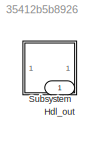
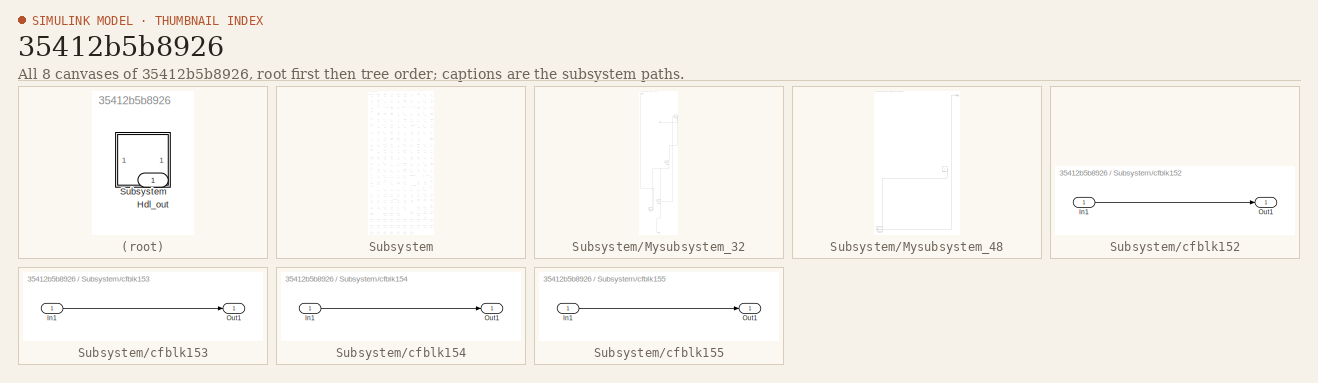
[diagram: thumbnail index - all 8 canvases of the model, root first then tree order]
MODEL slx_35412b5b8926
KIND model
CONFIG AbsTol = auto
CONFIG EnableMultiTasking = off
CONFIG FixedStep = auto
CONFIG MaxStep = auto
CONFIG MinStep = auto
CONFIG RelTol = 1e-3
CONFIG SampleTimeConstraint = Unconstrained
CONFIG SolverName = VariableStepAuto
CONFIG StartTime = 0.0
CONFIG StopTime = 10.0
BLOCK [Outport] Hdl_out
  OutDataTypeStr = uint8
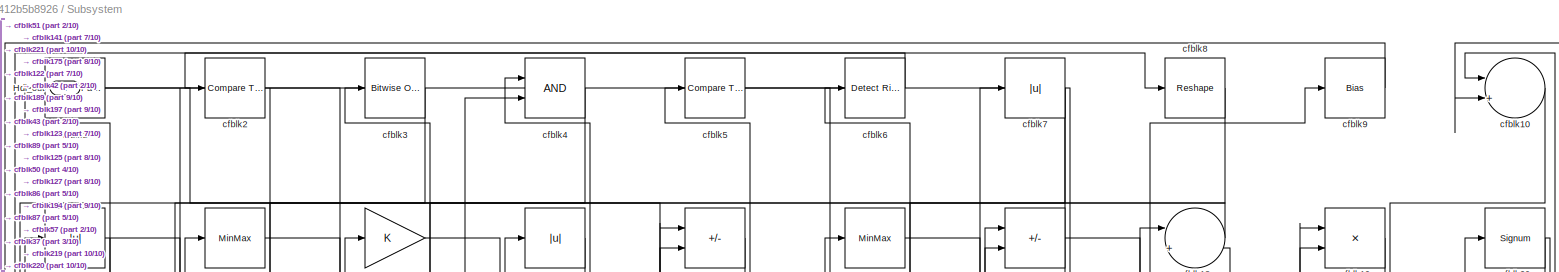
[diagram: Subsystem - part 1/10, full width, top band]
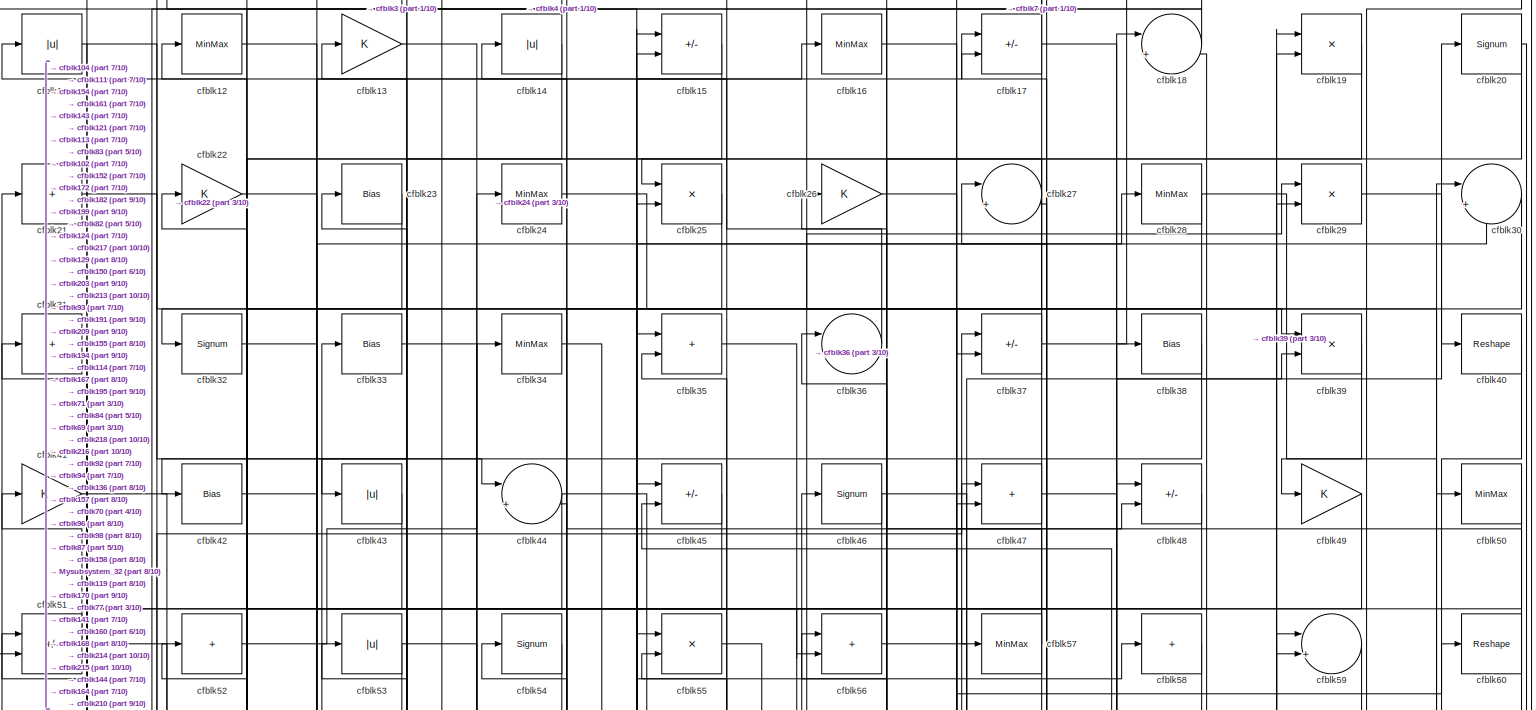
[diagram: Subsystem - part 2/10, full width, top band]
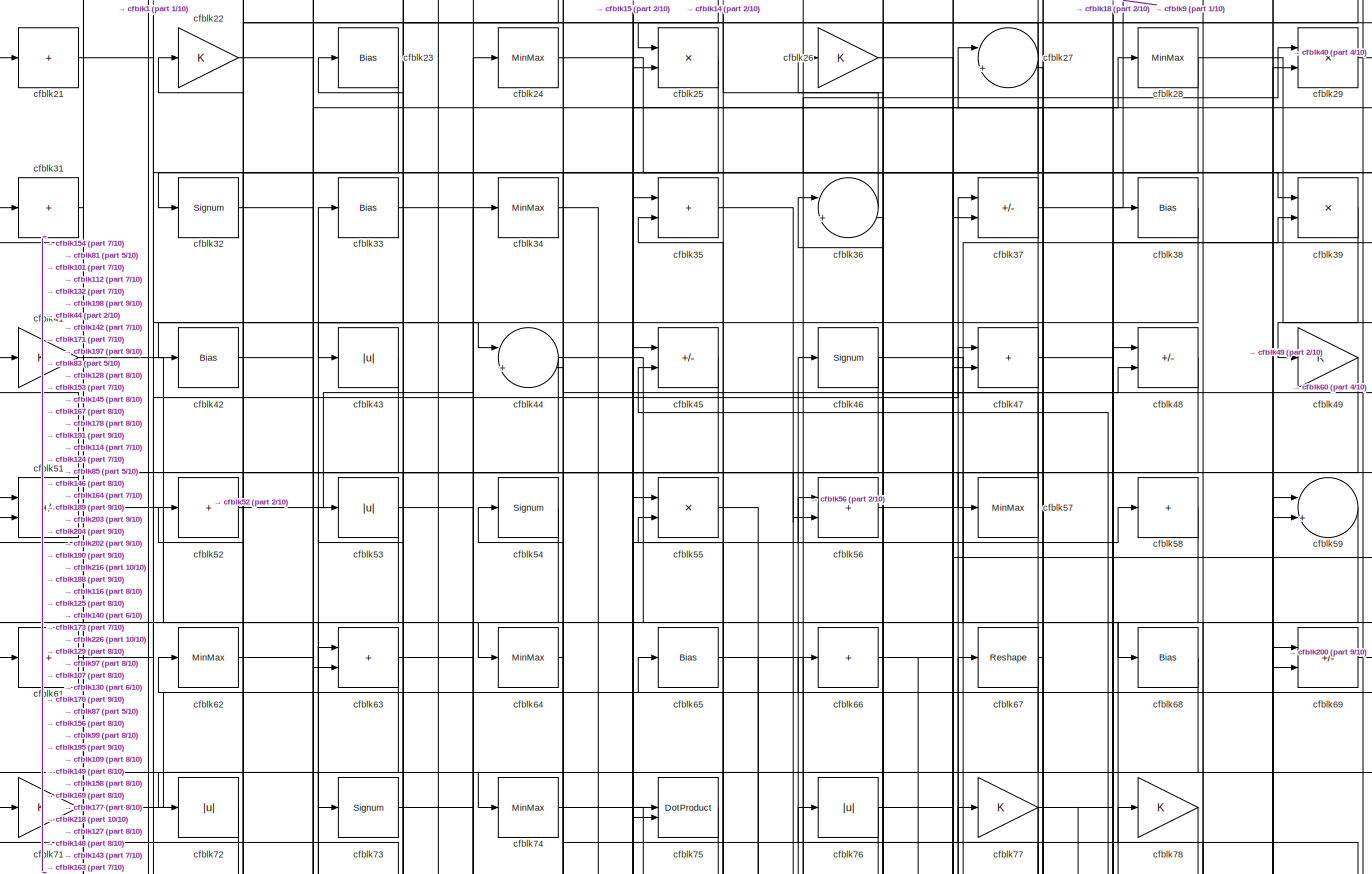
[diagram: Subsystem - part 3/10, full width, top band]
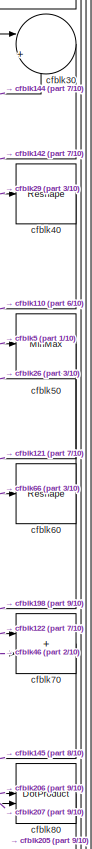
[diagram: Subsystem - part 4/10, top right region]
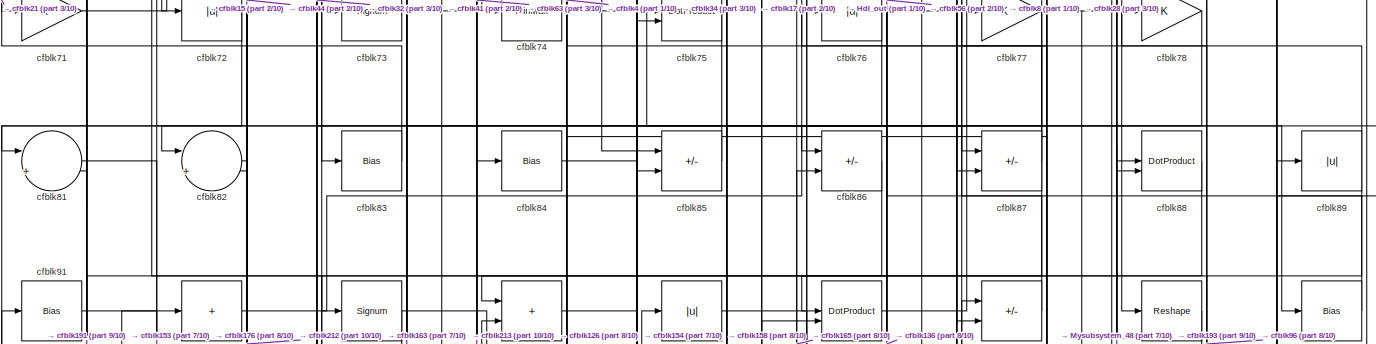
[diagram: Subsystem - part 5/10, full width, middle band]
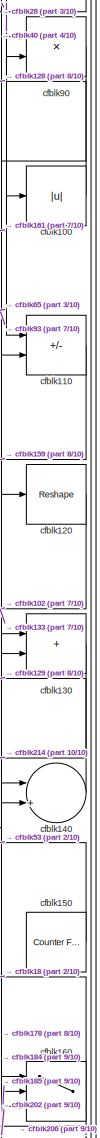
[diagram: Subsystem - part 6/10, middle right region]
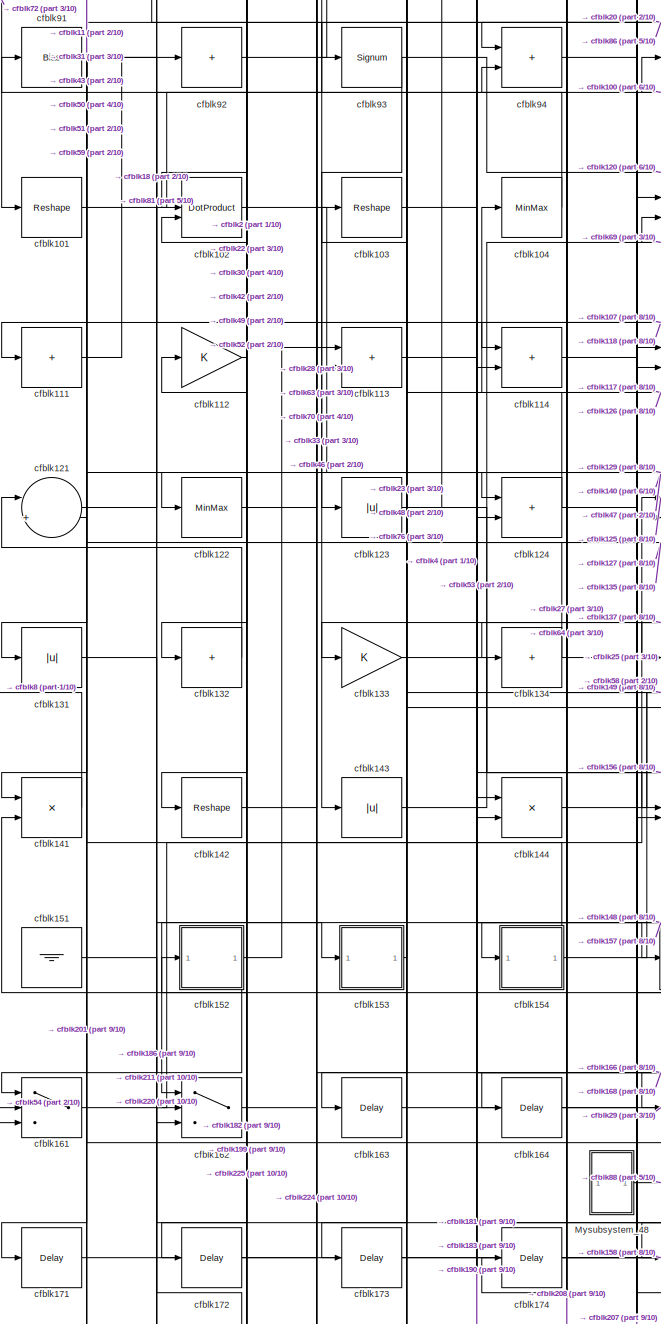
[diagram: Subsystem - part 7/10, middle left region]
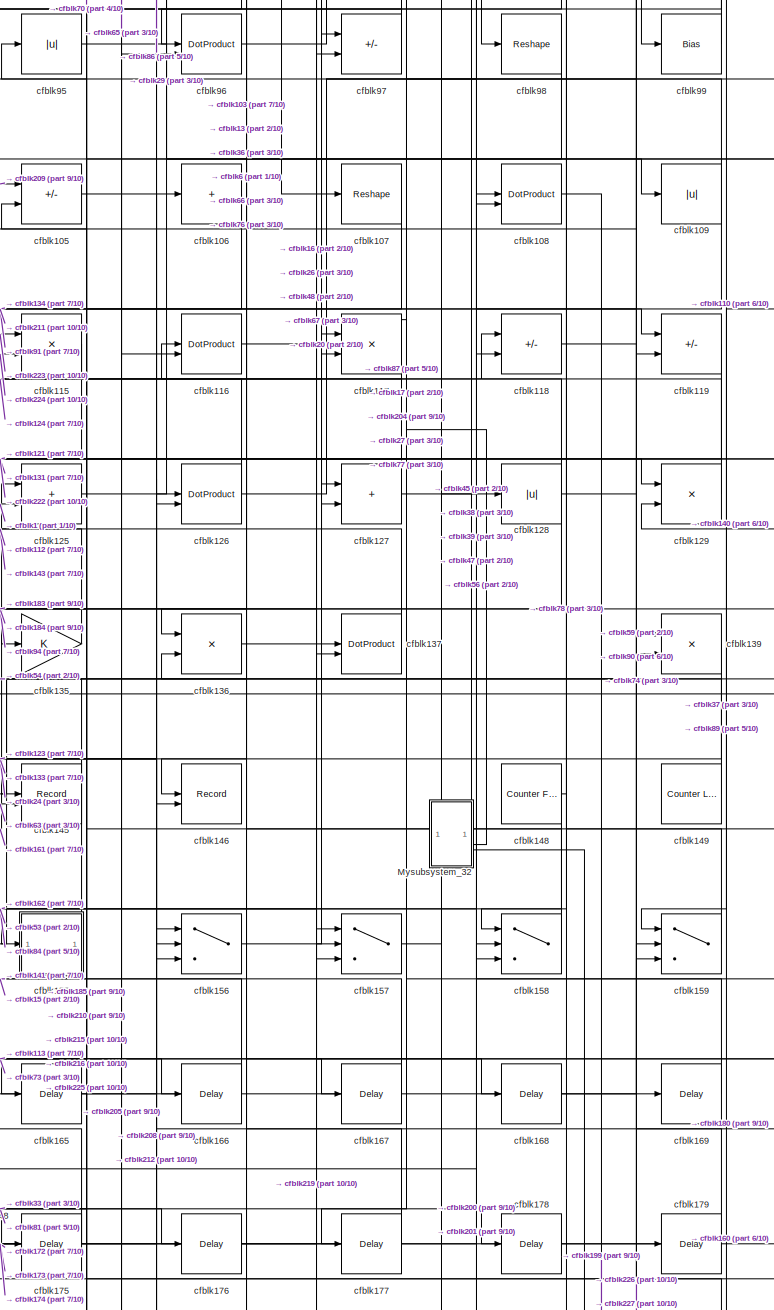
[diagram: Subsystem - part 8/10, middle right region]
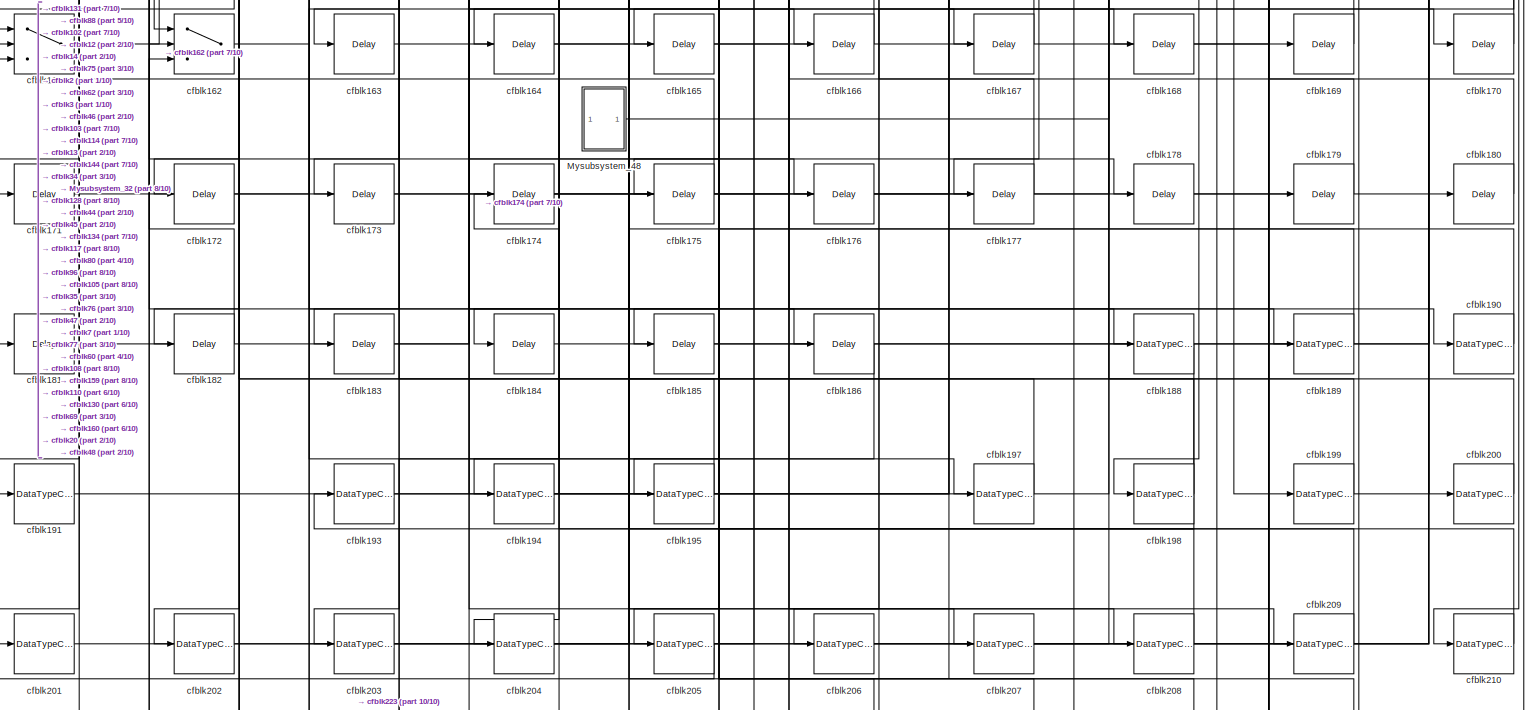
[diagram: Subsystem - part 9/10, full width, bottom band]
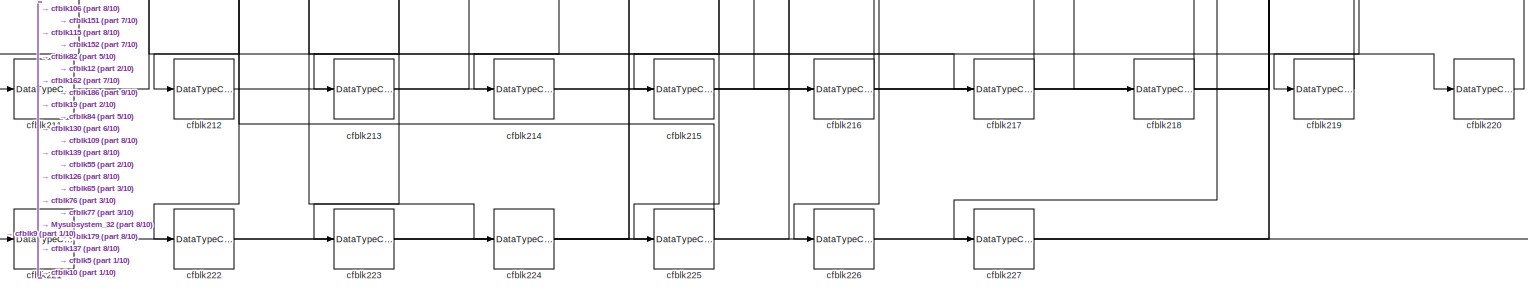
[diagram: Subsystem - part 10/10, full width, bottom band]
BLOCK [SubSystem] Subsystem
BLOCK [Outport] Subsystem/Hdl_out
  OutDataTypeStr = uint8
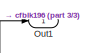
[diagram: Subsystem/Mysubsystem_32 - part 1/3, top left region]
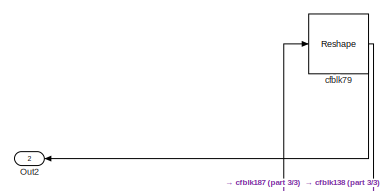
[diagram: Subsystem/Mysubsystem_32 - part 2/3, top right region]
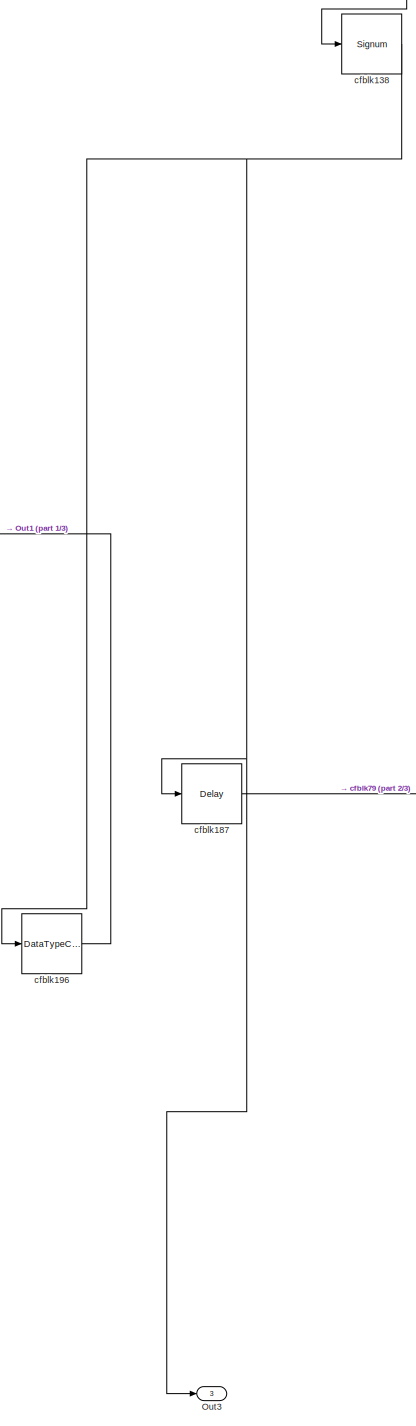
[diagram: Subsystem/Mysubsystem_32 - part 3/3, bottom center region]
BLOCK [SubSystem] Subsystem/Mysubsystem_32
  RTWFcnName = Mysubsystem_32
  RTWFcnNameOpts = User specified
  RTWFileNameOpts = Use function name
  RTWSystemCode = Reusable function
  TreatAsAtomicUnit = on
BLOCK [Outport] Subsystem/Mysubsystem_32/Out1
BLOCK [Outport] Subsystem/Mysubsystem_32/Out2
  Port = 2
BLOCK [Outport] Subsystem/Mysubsystem_32/Out3
  Port = 3
BLOCK [Signum] Subsystem/Mysubsystem_32/cfblk138
BLOCK [Delay] Subsystem/Mysubsystem_32/cfblk187
  InputPortMap = u0
  SampleTime = 1
BLOCK [DataTypeConversion] Subsystem/Mysubsystem_32/cfblk196
  OutDataTypeStr = uint8
  RndMeth = Floor
  SaturateOnIntegerOverflow = off
BLOCK [Reshape] Subsystem/Mysubsystem_32/cfblk79
BLOCK [SubSystem] Subsystem/Mysubsystem_48
  RTWFcnName = Mysubsystem_48
  RTWFcnNameOpts = User specified
  RTWFileNameOpts = Use function name
  RTWSystemCode = Reusable function
  TreatAsAtomicUnit = on
BLOCK [Outport] Subsystem/Mysubsystem_48/Out1
BLOCK [Constant] Subsystem/Mysubsystem_48/cfblk147
  SampleTime = -1
BLOCK [DataTypeConversion] Subsystem/Mysubsystem_48/cfblk192
  OutDataTypeStr = uint8
  RndMeth = Floor
  SaturateOnIntegerOverflow = off
BLOCK [Reference] Subsystem/cfblk1  REF=hdlsllib/Logic and Bit
Operations/Detect Fall
Nonpositive
  SourceBlock = hdlsllib/Logic and Bit\nOperations/Detect Fall\nNonpositive
  SourceType = Detect Fall Nonpositive
BLOCK [Sum] Subsystem/cfblk10
  Inputs = |++
  OutDataTypeStr = uint8
BLOCK [Abs] Subsystem/cfblk100
  OutDataTypeStr = uint8
  SaturateOnIntegerOverflow = off
BLOCK [Reshape] Subsystem/cfblk101
BLOCK [DotProduct] Subsystem/cfblk102
  OutDataTypeStr = uint8
BLOCK [Reshape] Subsystem/cfblk103
BLOCK [MinMax] Subsystem/cfblk104
  OutDataTypeStr = uint8
BLOCK [Sum] Subsystem/cfblk105
  IconShape = rectangular
  Inputs = +-
  OutDataTypeStr = uint8
BLOCK [Sum] Subsystem/cfblk106
  IconShape = rectangular
  Inputs = +
  OutDataTypeStr = uint8
BLOCK [Reshape] Subsystem/cfblk107
BLOCK [DotProduct] Subsystem/cfblk108
  OutDataTypeStr = uint8
BLOCK [Abs] Subsystem/cfblk109
  OutDataTypeStr = uint8
  SaturateOnIntegerOverflow = off
BLOCK [Abs] Subsystem/cfblk11
  OutDataTypeStr = uint8
  SaturateOnIntegerOverflow = off
BLOCK [Sum] Subsystem/cfblk110
  IconShape = rectangular
  Inputs = +-
  OutDataTypeStr = uint8
BLOCK [Sum] Subsystem/cfblk111
  IconShape = rectangular
  Inputs = +
  OutDataTypeStr = uint8
BLOCK [Gain] Subsystem/cfblk112
  OutDataTypeStr = uint8
BLOCK [Sum] Subsystem/cfblk113
  IconShape = rectangular
  OutDataTypeStr = uint8
BLOCK [Sum] Subsystem/cfblk114
  IconShape = rectangular
  OutDataTypeStr = uint8
BLOCK [Product] Subsystem/cfblk115
  Inputs = */
  OutDataTypeStr = uint8
  RndMeth = Zero
  SaturateOnIntegerOverflow = on
BLOCK [DotProduct] Subsystem/cfblk116
  OutDataTypeStr = uint8
BLOCK [Product] Subsystem/cfblk117
  Inputs = */
  OutDataTypeStr = uint8
  RndMeth = Zero
  SaturateOnIntegerOverflow = on
BLOCK [Sum] Subsystem/cfblk118
  IconShape = rectangular
  Inputs = +-
  OutDataTypeStr = uint8
BLOCK [Sum] Subsystem/cfblk119
  IconShape = rectangular
  Inputs = +-
  OutDataTypeStr = uint8
BLOCK [MinMax] Subsystem/cfblk12
  OutDataTypeStr = uint8
BLOCK [Reshape] Subsystem/cfblk120
BLOCK [Sum] Subsystem/cfblk121
  Inputs = |++
  OutDataTypeStr = uint8
BLOCK [MinMax] Subsystem/cfblk122
  OutDataTypeStr = uint8
BLOCK [Abs] Subsystem/cfblk123
  OutDataTypeStr = uint8
  SaturateOnIntegerOverflow = off
BLOCK [Sum] Subsystem/cfblk124
  IconShape = rectangular
  OutDataTypeStr = uint8
BLOCK [Sum] Subsystem/cfblk125
  IconShape = rectangular
  OutDataTypeStr = uint8
BLOCK [DotProduct] Subsystem/cfblk126
  OutDataTypeStr = uint8
BLOCK [Sum] Subsystem/cfblk127
  IconShape = rectangular
  OutDataTypeStr = uint8
BLOCK [Abs] Subsystem/cfblk128
  OutDataTypeStr = uint8
  SaturateOnIntegerOverflow = off
BLOCK [Product] Subsystem/cfblk129
  Inputs = */
  OutDataTypeStr = uint8
  RndMeth = Zero
  SaturateOnIntegerOverflow = on
BLOCK [Gain] Subsystem/cfblk13
  OutDataTypeStr = uint8
BLOCK [Sum] Subsystem/cfblk130
  IconShape = rectangular
  OutDataTypeStr = uint8
BLOCK [Abs] Subsystem/cfblk131
  OutDataTypeStr = uint8
  SaturateOnIntegerOverflow = off
BLOCK [Sum] Subsystem/cfblk132
  IconShape = rectangular
  Inputs = +
  OutDataTypeStr = uint8
BLOCK [Gain] Subsystem/cfblk133
  OutDataTypeStr = uint8
BLOCK [Sum] Subsystem/cfblk134
  IconShape = rectangular
  Inputs = +
  OutDataTypeStr = uint8
BLOCK [Gain] Subsystem/cfblk135
  OutDataTypeStr = uint8
BLOCK [Product] Subsystem/cfblk136
  Inputs = */
  OutDataTypeStr = uint8
  RndMeth = Zero
  SaturateOnIntegerOverflow = on
BLOCK [DotProduct] Subsystem/cfblk137
  OutDataTypeStr = uint8
BLOCK [Product] Subsystem/cfblk139
  Inputs = */
  OutDataTypeStr = uint8
  RndMeth = Zero
  SaturateOnIntegerOverflow = on
BLOCK [Abs] Subsystem/cfblk14
  OutDataTypeStr = uint8
  SaturateOnIntegerOverflow = off
BLOCK [Sum] Subsystem/cfblk140
  Inputs = |++
  OutDataTypeStr = uint8
BLOCK [Product] Subsystem/cfblk141
  Inputs = */
  OutDataTypeStr = uint8
  RndMeth = Zero
  SaturateOnIntegerOverflow = on
BLOCK [Reshape] Subsystem/cfblk142
BLOCK [Abs] Subsystem/cfblk143
  OutDataTypeStr = uint8
  SaturateOnIntegerOverflow = off
BLOCK [Product] Subsystem/cfblk144
  Inputs = */
  OutDataTypeStr = uint8
  RndMeth = Zero
  SaturateOnIntegerOverflow = on
BLOCK [Record] Subsystem/cfblk145
  CompatibilityTag = XY
  FileSettingsInternal = {"entries":[{"content":{"excelSettings":{"content":{},"type":"Streamout.ExcelSettings"}},"type":"Streamout.FileSettingStorage","uuid":""}],"packageUris":["http:\/\/schema.mathworks.com\/mf0\/streamout_blocks\/R2020a"],"version":"1.0"}
  Layout = [1 1]
  SignalsInternal = {"entries":[{"content":{"signals":[{"content":{"blockPath":[],"dimensions":[1],"domain":"","lineColor":"#a2142f","plots":[1],"port":1,"signalID":32160,"signalName":"cfblk70"},"type":"RecordBlkView.Signal","uuid":""},{"content":{"blockPath":[],"dimensions":[1],"domain":"","lineColor":"#139fff","plots":[1],"port":2,"signalID":32163,"signalName":"cfblk63"},"type":"RecordBlkView.Signal","uuid":""}]},"...<+142ch>
  VisualizationBindings = {"xyplotplugin":{"info":[{"series":[{"bindingParametersList":[{"parameter":"X-Axis","signalID":32160,"signalName":"cfblk70"},{"parameter":"Y-Axis","signalID":32163,"signalName":"cfblk63"}],"seriesID":42560}],"subplotID":1}]}}
  st = -1
BLOCK [Record] Subsystem/cfblk146
  CompatibilityTag = XY
  FileSettingsInternal = {"entries":[{"content":{"excelSettings":{"content":{},"type":"Streamout.ExcelSettings"}},"type":"Streamout.FileSettingStorage","uuid":""}],"packageUris":["http:\/\/schema.mathworks.com\/mf0\/streamout_blocks\/R2020a"],"version":"1.0"}
  Layout = [1 1]
  SignalsInternal = {"entries":[{"content":{"signals":[{"content":{"blockPath":[],"dimensions":[1],"domain":"","lineColor":"#a2142f","plots":[1],"port":1,"signalID":32152,"signalName":"cfblk78"},"type":"RecordBlkView.Signal","uuid":""},{"content":{"blockPath":[],"dimensions":[1],"domain":"","lineColor":"#139fff","plots":[1],"port":2,"signalID":32155,"signalName":"cfblk24"},"type":"RecordBlkView.Signal","uuid":""}]},"...<+142ch>
  VisualizationBindings = {"xyplotplugin":{"info":[{"series":[{"bindingParametersList":[{"parameter":"X-Axis","signalID":32152,"signalName":"cfblk78"},{"parameter":"Y-Axis","signalID":32155,"signalName":"cfblk24"}],"seriesID":30195}],"subplotID":1}]}}
  st = -1
BLOCK [Reference] Subsystem/cfblk148  REF=hdlsllib/Sources/Counter
Free-Running
  SourceBlock = hdlsllib/Sources/Counter\nFree-Running
  SourceType = Counter Free-Running
BLOCK [Reference] Subsystem/cfblk149  REF=hdlsllib/Sources/Counter
Limited
  SourceBlock = hdlsllib/Sources/Counter\nLimited
  SourceType = Counter Limited
BLOCK [Sum] Subsystem/cfblk15
  IconShape = rectangular
  Inputs = +-
  OutDataTypeStr = uint8
BLOCK [Reference] Subsystem/cfblk150  REF=hdlsllib/Sources/Counter
Free-Running
  SourceBlock = hdlsllib/Sources/Counter\nFree-Running
  SourceType = Counter Free-Running
BLOCK [Ground] Subsystem/cfblk151
BLOCK [SubSystem] Subsystem/cfblk152
  LibrarySourceBlock = hdlsllib/Ports &\nSubsystems/Subsystem
BLOCK [Inport] Subsystem/cfblk152/In1
BLOCK [Outport] Subsystem/cfblk152/Out1
BLOCK [SubSystem] Subsystem/cfblk153
  LibrarySourceBlock = hdlsllib/Ports &\nSubsystems/Subsystem
BLOCK [Inport] Subsystem/cfblk153/In1
BLOCK [Outport] Subsystem/cfblk153/Out1
BLOCK [SubSystem] Subsystem/cfblk154
  LibrarySourceBlock = hdlsllib/Ports &\nSubsystems/Subsystem
BLOCK [Inport] Subsystem/cfblk154/In1
BLOCK [Outport] Subsystem/cfblk154/Out1
BLOCK [SubSystem] Subsystem/cfblk155
  LibrarySourceBlock = hdlsllib/Ports &\nSubsystems/Subsystem
BLOCK [Inport] Subsystem/cfblk155/In1
BLOCK [Outport] Subsystem/cfblk155/Out1
BLOCK [Switch] Subsystem/cfblk156
  InputSameDT = off
  OutDataTypeStr = uint8
  SaturateOnIntegerOverflow = off
BLOCK [Switch] Subsystem/cfblk157
  InputSameDT = off
  OutDataTypeStr = uint8
  SaturateOnIntegerOverflow = off
BLOCK [Switch] Subsystem/cfblk158
  InputSameDT = off
  OutDataTypeStr = uint8
  SaturateOnIntegerOverflow = off
BLOCK [Switch] Subsystem/cfblk159
  InputSameDT = off
  OutDataTypeStr = uint8
  SaturateOnIntegerOverflow = off
BLOCK [MinMax] Subsystem/cfblk16
  OutDataTypeStr = uint8
BLOCK [Switch] Subsystem/cfblk160
  InputSameDT = off
  OutDataTypeStr = uint8
  SaturateOnIntegerOverflow = off
BLOCK [Switch] Subsystem/cfblk161
  InputSameDT = off
  OutDataTypeStr = uint8
  SaturateOnIntegerOverflow = off
BLOCK [Switch] Subsystem/cfblk162
  InputSameDT = off
  OutDataTypeStr = uint8
  SaturateOnIntegerOverflow = off
BLOCK [Delay] Subsystem/cfblk163
  InputPortMap = u0
  SampleTime = 1
BLOCK [Delay] Subsystem/cfblk164
  InputPortMap = u0
  SampleTime = 1
BLOCK [Delay] Subsystem/cfblk165
  InputPortMap = u0
  SampleTime = 1
BLOCK [Delay] Subsystem/cfblk166
  InputPortMap = u0
  SampleTime = 1
BLOCK [Delay] Subsystem/cfblk167
  InputPortMap = u0
  SampleTime = 1
BLOCK [Delay] Subsystem/cfblk168
  InputPortMap = u0
  SampleTime = 1
BLOCK [Delay] Subsystem/cfblk169
  InputPortMap = u0
  SampleTime = 1
BLOCK [Sum] Subsystem/cfblk17
  IconShape = rectangular
  Inputs = +-
  OutDataTypeStr = uint8
BLOCK [Delay] Subsystem/cfblk170
  InputPortMap = u0
  SampleTime = 1
BLOCK [Delay] Subsystem/cfblk171
  InputPortMap = u0
  SampleTime = 1
BLOCK [Delay] Subsystem/cfblk172
  InputPortMap = u0
  SampleTime = 1
BLOCK [Delay] Subsystem/cfblk173
  InputPortMap = u0
  SampleTime = 1
BLOCK [Delay] Subsystem/cfblk174
  InputPortMap = u0
  SampleTime = 1
BLOCK [Delay] Subsystem/cfblk175
  InputPortMap = u0
  SampleTime = 1
BLOCK [Delay] Subsystem/cfblk176
  InputPortMap = u0
  SampleTime = 1
BLOCK [Delay] Subsystem/cfblk177
  InputPortMap = u0
  SampleTime = 1
BLOCK [Delay] Subsystem/cfblk178
  InputPortMap = u0
  SampleTime = 1
BLOCK [Delay] Subsystem/cfblk179
  InputPortMap = u0
  SampleTime = 1
BLOCK [Sum] Subsystem/cfblk18
  Inputs = |++
  OutDataTypeStr = uint8
BLOCK [Delay] Subsystem/cfblk180
  InputPortMap = u0
  SampleTime = 1
BLOCK [Delay] Subsystem/cfblk181
  InputPortMap = u0
  SampleTime = 1
BLOCK [Delay] Subsystem/cfblk182
  InputPortMap = u0
  SampleTime = 1
BLOCK [Delay] Subsystem/cfblk183
  InputPortMap = u0
  SampleTime = 1
BLOCK [Delay] Subsystem/cfblk184
  InputPortMap = u0
  SampleTime = 1
BLOCK [Delay] Subsystem/cfblk185
  InputPortMap = u0
  SampleTime = 1
BLOCK [Delay] Subsystem/cfblk186
  InputPortMap = u0
  SampleTime = 1
BLOCK [DataTypeConversion] Subsystem/cfblk188
  OutDataTypeStr = uint8
  RndMeth = Floor
  SaturateOnIntegerOverflow = off
BLOCK [DataTypeConversion] Subsystem/cfblk189
  OutDataTypeStr = uint8
  RndMeth = Floor
  SaturateOnIntegerOverflow = off
BLOCK [Product] Subsystem/cfblk19
  Inputs = */
  OutDataTypeStr = uint8
  RndMeth = Zero
  SaturateOnIntegerOverflow = on
BLOCK [DataTypeConversion] Subsystem/cfblk190
  OutDataTypeStr = uint8
  RndMeth = Floor
  SaturateOnIntegerOverflow = off
BLOCK [DataTypeConversion] Subsystem/cfblk191
  OutDataTypeStr = uint8
  RndMeth = Floor
  SaturateOnIntegerOverflow = off
BLOCK [DataTypeConversion] Subsystem/cfblk193
  OutDataTypeStr = uint8
  RndMeth = Floor
  SaturateOnIntegerOverflow = off
BLOCK [DataTypeConversion] Subsystem/cfblk194
  OutDataTypeStr = uint8
  RndMeth = Floor
  SaturateOnIntegerOverflow = off
BLOCK [DataTypeConversion] Subsystem/cfblk195
  OutDataTypeStr = uint8
  RndMeth = Floor
  SaturateOnIntegerOverflow = off
BLOCK [DataTypeConversion] Subsystem/cfblk197
  OutDataTypeStr = uint8
  RndMeth = Floor
  SaturateOnIntegerOverflow = off
BLOCK [DataTypeConversion] Subsystem/cfblk198
  OutDataTypeStr = uint8
  RndMeth = Floor
  SaturateOnIntegerOverflow = off
BLOCK [DataTypeConversion] Subsystem/cfblk199
  OutDataTypeStr = uint8
  RndMeth = Floor
  SaturateOnIntegerOverflow = off
BLOCK [Reference] Subsystem/cfblk2  REF=hdlsllib/Logic and Bit
Operations/Compare
To Constant
  SourceBlock = hdlsllib/Logic and Bit\nOperations/Compare\nTo Constant
  SourceType = Compare To Constant
BLOCK [Signum] Subsystem/cfblk20
BLOCK [DataTypeConversion] Subsystem/cfblk200
  OutDataTypeStr = uint8
  RndMeth = Floor
  SaturateOnIntegerOverflow = off
BLOCK [DataTypeConversion] Subsystem/cfblk201
  OutDataTypeStr = uint8
  RndMeth = Floor
  SaturateOnIntegerOverflow = off
BLOCK [DataTypeConversion] Subsystem/cfblk202
  OutDataTypeStr = uint8
  RndMeth = Floor
  SaturateOnIntegerOverflow = off
BLOCK [DataTypeConversion] Subsystem/cfblk203
  OutDataTypeStr = uint8
  RndMeth = Floor
  SaturateOnIntegerOverflow = off
BLOCK [DataTypeConversion] Subsystem/cfblk204
  OutDataTypeStr = uint8
  RndMeth = Floor
  SaturateOnIntegerOverflow = off
BLOCK [DataTypeConversion] Subsystem/cfblk205
  OutDataTypeStr = uint8
  RndMeth = Floor
  SaturateOnIntegerOverflow = off
BLOCK [DataTypeConversion] Subsystem/cfblk206
  OutDataTypeStr = uint8
  RndMeth = Floor
  SaturateOnIntegerOverflow = off
BLOCK [DataTypeConversion] Subsystem/cfblk207
  OutDataTypeStr = uint8
  RndMeth = Floor
  SaturateOnIntegerOverflow = off
BLOCK [DataTypeConversion] Subsystem/cfblk208
  OutDataTypeStr = uint8
  RndMeth = Floor
  SaturateOnIntegerOverflow = off
BLOCK [DataTypeConversion] Subsystem/cfblk209
  OutDataTypeStr = uint8
  RndMeth = Floor
  SaturateOnIntegerOverflow = off
BLOCK [Sum] Subsystem/cfblk21
  IconShape = rectangular
  Inputs = +
  OutDataTypeStr = uint8
BLOCK [DataTypeConversion] Subsystem/cfblk210
  OutDataTypeStr = uint8
  RndMeth = Floor
  SaturateOnIntegerOverflow = off
BLOCK [DataTypeConversion] Subsystem/cfblk211
  OutDataTypeStr = uint8
  RndMeth = Floor
  SaturateOnIntegerOverflow = off
BLOCK [DataTypeConversion] Subsystem/cfblk212
  OutDataTypeStr = uint8
  RndMeth = Floor
  SaturateOnIntegerOverflow = off
BLOCK [DataTypeConversion] Subsystem/cfblk213
  OutDataTypeStr = uint8
  RndMeth = Floor
  SaturateOnIntegerOverflow = off
BLOCK [DataTypeConversion] Subsystem/cfblk214
  OutDataTypeStr = uint8
  RndMeth = Floor
  SaturateOnIntegerOverflow = off
BLOCK [DataTypeConversion] Subsystem/cfblk215
  OutDataTypeStr = uint8
  RndMeth = Floor
  SaturateOnIntegerOverflow = off
BLOCK [DataTypeConversion] Subsystem/cfblk216
  OutDataTypeStr = uint8
  RndMeth = Floor
  SaturateOnIntegerOverflow = off
BLOCK [DataTypeConversion] Subsystem/cfblk217
  OutDataTypeStr = uint8
  RndMeth = Floor
  SaturateOnIntegerOverflow = off
BLOCK [DataTypeConversion] Subsystem/cfblk218
  OutDataTypeStr = uint8
  RndMeth = Floor
  SaturateOnIntegerOverflow = off
BLOCK [DataTypeConversion] Subsystem/cfblk219
  OutDataTypeStr = uint8
  RndMeth = Floor
  SaturateOnIntegerOverflow = off
BLOCK [Gain] Subsystem/cfblk22
  OutDataTypeStr = uint8
BLOCK [DataTypeConversion] Subsystem/cfblk220
  OutDataTypeStr = uint8
  RndMeth = Floor
  SaturateOnIntegerOverflow = off
BLOCK [DataTypeConversion] Subsystem/cfblk221
  OutDataTypeStr = uint8
  RndMeth = Floor
  SaturateOnIntegerOverflow = off
BLOCK [DataTypeConversion] Subsystem/cfblk222
  OutDataTypeStr = uint8
  RndMeth = Floor
  SaturateOnIntegerOverflow = off
BLOCK [DataTypeConversion] Subsystem/cfblk223
  OutDataTypeStr = uint8
  RndMeth = Floor
  SaturateOnIntegerOverflow = off
BLOCK [DataTypeConversion] Subsystem/cfblk224
  OutDataTypeStr = uint8
  RndMeth = Floor
  SaturateOnIntegerOverflow = off
BLOCK [DataTypeConversion] Subsystem/cfblk225
  OutDataTypeStr = uint8
  RndMeth = Floor
  SaturateOnIntegerOverflow = off
BLOCK [DataTypeConversion] Subsystem/cfblk226
  OutDataTypeStr = uint8
  RndMeth = Floor
  SaturateOnIntegerOverflow = off
BLOCK [DataTypeConversion] Subsystem/cfblk227
  OutDataTypeStr = uint8
  RndMeth = Floor
  SaturateOnIntegerOverflow = off
BLOCK [Bias] Subsystem/cfblk23
  Bias = 0.0
  SaturateOnIntegerOverflow = off
BLOCK [MinMax] Subsystem/cfblk24
  OutDataTypeStr = uint8
BLOCK [Product] Subsystem/cfblk25
  Inputs = */
  OutDataTypeStr = uint8
  RndMeth = Zero
  SaturateOnIntegerOverflow = on
BLOCK [Gain] Subsystem/cfblk26
  OutDataTypeStr = uint8
BLOCK [Sum] Subsystem/cfblk27
  Inputs = |++
  OutDataTypeStr = uint8
BLOCK [MinMax] Subsystem/cfblk28
  OutDataTypeStr = uint8
BLOCK [Product] Subsystem/cfblk29
  Inputs = */
  OutDataTypeStr = uint8
  RndMeth = Zero
  SaturateOnIntegerOverflow = on
BLOCK [Reference] Subsystem/cfblk3  REF=simulink/Logic and Bit
Operations/Bitwise
Operator
  LibrarySourceBlock = hdlsllib/Logic and Bit\nOperations/Bitwise\nOperator
  SourceBlock = simulink/Logic and Bit\nOperations/Bitwise\nOperator
  SourceType = Bitwise Operator
BLOCK [Sum] Subsystem/cfblk30
  Inputs = |++
  OutDataTypeStr = uint8
BLOCK [Sum] Subsystem/cfblk31
  IconShape = rectangular
  Inputs = +
  OutDataTypeStr = uint8
BLOCK [Signum] Subsystem/cfblk32
BLOCK [Bias] Subsystem/cfblk33
  Bias = 0.0
  SaturateOnIntegerOverflow = off
BLOCK [MinMax] Subsystem/cfblk34
  OutDataTypeStr = uint8
BLOCK [Sum] Subsystem/cfblk35
  IconShape = rectangular
  OutDataTypeStr = uint8
BLOCK [Sum] Subsystem/cfblk36
  Inputs = |++
  OutDataTypeStr = uint8
BLOCK [Sum] Subsystem/cfblk37
  IconShape = rectangular
  Inputs = +-
  OutDataTypeStr = uint8
BLOCK [Bias] Subsystem/cfblk38
  Bias = 0.0
  SaturateOnIntegerOverflow = off
BLOCK [Product] Subsystem/cfblk39
  Inputs = */
  OutDataTypeStr = uint8
  RndMeth = Zero
  SaturateOnIntegerOverflow = on
BLOCK [Logic] Subsystem/cfblk4
  AllPortsSameDT = off
  OutDataTypeStr = boolean
BLOCK [Reshape] Subsystem/cfblk40
BLOCK [Gain] Subsystem/cfblk41
  OutDataTypeStr = uint8
BLOCK [Bias] Subsystem/cfblk42
  Bias = 0.0
  SaturateOnIntegerOverflow = off
BLOCK [Abs] Subsystem/cfblk43
  OutDataTypeStr = uint8
  SaturateOnIntegerOverflow = off
BLOCK [Sum] Subsystem/cfblk44
  Inputs = |++
  OutDataTypeStr = uint8
BLOCK [Sum] Subsystem/cfblk45
  IconShape = rectangular
  Inputs = +-
  OutDataTypeStr = uint8
BLOCK [Signum] Subsystem/cfblk46
BLOCK [Sum] Subsystem/cfblk47
  IconShape = rectangular
  OutDataTypeStr = uint8
BLOCK [Sum] Subsystem/cfblk48
  IconShape = rectangular
  Inputs = +-
  OutDataTypeStr = uint8
BLOCK [Gain] Subsystem/cfblk49
  OutDataTypeStr = uint8
BLOCK [Reference] Subsystem/cfblk5  REF=hdlsllib/Logic and Bit
Operations/Compare
To Constant
  SourceBlock = hdlsllib/Logic and Bit\nOperations/Compare\nTo Constant
  SourceType = Compare To Constant
BLOCK [MinMax] Subsystem/cfblk50
  OutDataTypeStr = uint8
BLOCK [Sum] Subsystem/cfblk51
  IconShape = rectangular
  Inputs = +-
  OutDataTypeStr = uint8
BLOCK [Sum] Subsystem/cfblk52
  IconShape = rectangular
  Inputs = +
  OutDataTypeStr = uint8
BLOCK [Abs] Subsystem/cfblk53
  OutDataTypeStr = uint8
  SaturateOnIntegerOverflow = off
BLOCK [Signum] Subsystem/cfblk54
BLOCK [Product] Subsystem/cfblk55
  Inputs = */
  OutDataTypeStr = uint8
  RndMeth = Zero
  SaturateOnIntegerOverflow = on
BLOCK [Sum] Subsystem/cfblk56
  IconShape = rectangular
  OutDataTypeStr = uint8
BLOCK [MinMax] Subsystem/cfblk57
  OutDataTypeStr = uint8
BLOCK [Sum] Subsystem/cfblk58
  IconShape = rectangular
  Inputs = +
  OutDataTypeStr = uint8
BLOCK [Sum] Subsystem/cfblk59
  Inputs = |++
  OutDataTypeStr = uint8
BLOCK [Reference] Subsystem/cfblk6  REF=hdlsllib/Logic and Bit
Operations/Detect Rise
Positive
  SourceBlock = hdlsllib/Logic and Bit\nOperations/Detect Rise\nPositive
  SourceType = Detect Rise Positive
BLOCK [Reshape] Subsystem/cfblk60
BLOCK [Sum] Subsystem/cfblk61
  IconShape = rectangular
  Inputs = +
  OutDataTypeStr = uint8
BLOCK [MinMax] Subsystem/cfblk62
  OutDataTypeStr = uint8
BLOCK [Sum] Subsystem/cfblk63
  IconShape = rectangular
  OutDataTypeStr = uint8
BLOCK [MinMax] Subsystem/cfblk64
  OutDataTypeStr = uint8
BLOCK [Bias] Subsystem/cfblk65
  Bias = 0.0
  SaturateOnIntegerOverflow = off
BLOCK [Sum] Subsystem/cfblk66
  IconShape = rectangular
  Inputs = +
  OutDataTypeStr = uint8
BLOCK [Reshape] Subsystem/cfblk67
BLOCK [Bias] Subsystem/cfblk68
  Bias = 0.0
  SaturateOnIntegerOverflow = off
BLOCK [Sum] Subsystem/cfblk69
  IconShape = rectangular
  Inputs = +-
  OutDataTypeStr = uint8
BLOCK [Abs] Subsystem/cfblk7
  OutDataTypeStr = uint8
  SaturateOnIntegerOverflow = off
BLOCK [Sum] Subsystem/cfblk70
  IconShape = rectangular
  OutDataTypeStr = uint8
BLOCK [Gain] Subsystem/cfblk71
  OutDataTypeStr = uint8
BLOCK [Abs] Subsystem/cfblk72
  OutDataTypeStr = uint8
  SaturateOnIntegerOverflow = off
BLOCK [Signum] Subsystem/cfblk73
BLOCK [MinMax] Subsystem/cfblk74
  OutDataTypeStr = uint8
BLOCK [DotProduct] Subsystem/cfblk75
  OutDataTypeStr = uint8
BLOCK [Abs] Subsystem/cfblk76
  OutDataTypeStr = uint8
  SaturateOnIntegerOverflow = off
BLOCK [Gain] Subsystem/cfblk77
  OutDataTypeStr = uint8
BLOCK [Gain] Subsystem/cfblk78
  OutDataTypeStr = uint8
BLOCK [Reshape] Subsystem/cfblk8
BLOCK [DotProduct] Subsystem/cfblk80
  OutDataTypeStr = uint8
BLOCK [Sum] Subsystem/cfblk81
  Inputs = |++
  OutDataTypeStr = uint8
BLOCK [Sum] Subsystem/cfblk82
  Inputs = |++
  OutDataTypeStr = uint8
BLOCK [Bias] Subsystem/cfblk83
  Bias = 0.0
  SaturateOnIntegerOverflow = off
BLOCK [Bias] Subsystem/cfblk84
  Bias = 0.0
  SaturateOnIntegerOverflow = off
BLOCK [Sum] Subsystem/cfblk85
  IconShape = rectangular
  Inputs = +-
  OutDataTypeStr = uint8
BLOCK [Sum] Subsystem/cfblk86
  IconShape = rectangular
  Inputs = +-
  OutDataTypeStr = uint8
BLOCK [Sum] Subsystem/cfblk87
  IconShape = rectangular
  Inputs = +-
  OutDataTypeStr = uint8
BLOCK [DotProduct] Subsystem/cfblk88
  OutDataTypeStr = uint8
BLOCK [Abs] Subsystem/cfblk89
  OutDataTypeStr = uint8
  SaturateOnIntegerOverflow = off
BLOCK [Bias] Subsystem/cfblk9
  Bias = 0.0
  SaturateOnIntegerOverflow = off
BLOCK [Product] Subsystem/cfblk90
  Inputs = */
  OutDataTypeStr = uint8
  RndMeth = Zero
  SaturateOnIntegerOverflow = on
BLOCK [Bias] Subsystem/cfblk91
  Bias = 0.0
  SaturateOnIntegerOverflow = off
BLOCK [Sum] Subsystem/cfblk92
  IconShape = rectangular
  Inputs = +
  OutDataTypeStr = uint8
BLOCK [Signum] Subsystem/cfblk93
BLOCK [Sum] Subsystem/cfblk94
  IconShape = rectangular
  OutDataTypeStr = uint8
BLOCK [Abs] Subsystem/cfblk95
  OutDataTypeStr = uint8
  SaturateOnIntegerOverflow = off
BLOCK [DotProduct] Subsystem/cfblk96
  OutDataTypeStr = uint8
BLOCK [Sum] Subsystem/cfblk97
  IconShape = rectangular
  Inputs = +-
  OutDataTypeStr = uint8
BLOCK [Reshape] Subsystem/cfblk98
BLOCK [Bias] Subsystem/cfblk99
  Bias = 0.0
  SaturateOnIntegerOverflow = off
NET Subsystem/Mysubsystem_32/cfblk138:1 -> Subsystem/Mysubsystem_32/Out3:1, Subsystem/Mysubsystem_32/cfblk187:1, Subsystem/Mysubsystem_32/cfblk196:1
LINE Subsystem/Mysubsystem_32/cfblk187:1 -> Subsystem/Mysubsystem_32/cfblk79:1
LINE Subsystem/Mysubsystem_32/cfblk196:1 -> Subsystem/Mysubsystem_32/Out1:1
NET Subsystem/Mysubsystem_32/cfblk79:1 -> Subsystem/Mysubsystem_32/Out2:1, Subsystem/Mysubsystem_32/cfblk138:1
LINE Subsystem/Mysubsystem_32:1 -> Subsystem/cfblk45:2
NET Subsystem/Mysubsystem_32:2 -> Subsystem/cfblk117:1, Subsystem/cfblk204:1
LINE Subsystem/Mysubsystem_32:3 -> Subsystem/cfblk227:1
LINE Subsystem/Mysubsystem_48/cfblk147:1 -> Subsystem/Mysubsystem_48/cfblk192:1
LINE Subsystem/Mysubsystem_48/cfblk192:1 -> Subsystem/Mysubsystem_48/Out1:1
LINE Subsystem/Mysubsystem_48:1 -> Subsystem/cfblk88:1
LINE Subsystem/cfblk100:1 -> Subsystem/cfblk90:1
LINE Subsystem/cfblk101:1 -> Subsystem/cfblk33:1
LINE Subsystem/cfblk102:1 -> Subsystem/cfblk140:2
NET Subsystem/cfblk103:1 -> Subsystem/cfblk157:3, Subsystem/cfblk190:1
LINE Subsystem/cfblk104:1 -> Subsystem/cfblk51:1
LINE Subsystem/cfblk105:1 -> Subsystem/cfblk208:1
LINE Subsystem/cfblk106:1 -> Subsystem/cfblk211:1
LINE Subsystem/cfblk107:1 -> Subsystem/cfblk134:1
LINE Subsystem/cfblk108:1 -> Subsystem/cfblk199:1
NET Subsystem/cfblk109:1 -> Subsystem/cfblk215:1, Subsystem/cfblk27:2
LINE Subsystem/cfblk10:1 -> Subsystem/cfblk219:1
LINE Subsystem/cfblk110:1 -> Subsystem/cfblk159:1
LINE Subsystem/cfblk111:1 -> Subsystem/cfblk92:1
LINE Subsystem/cfblk112:1 -> Subsystem/cfblk22:1
LINE Subsystem/cfblk113:1 -> Subsystem/cfblk168:1
LINE Subsystem/cfblk114:1 -> Subsystem/cfblk58:1
LINE Subsystem/cfblk115:1 -> Subsystem/cfblk222:1
LINE Subsystem/cfblk116:1 -> Subsystem/cfblk38:1
NET Subsystem/cfblk117:1 -> Subsystem/cfblk131:1, Subsystem/cfblk135:1, Subsystem/cfblk185:1
LINE Subsystem/cfblk118:1 -> Subsystem/cfblk169:1
LINE Subsystem/cfblk119:1 -> Subsystem/cfblk175:1
NET Subsystem/cfblk11:1 -> Subsystem/cfblk161:1, Subsystem/cfblk44:1
LINE Subsystem/cfblk120:1 -> Subsystem/cfblk133:1
NET Subsystem/cfblk121:1 -> Subsystem/cfblk129:1, Subsystem/cfblk47:1
LINE Subsystem/cfblk122:1 -> Subsystem/cfblk70:1
NET Subsystem/cfblk123:1 -> Subsystem/cfblk156:3, Subsystem/cfblk4:2
NET Subsystem/cfblk124:1 -> Subsystem/cfblk104:1, Subsystem/cfblk117:2
LINE Subsystem/cfblk125:1 -> Subsystem/cfblk29:1
NET Subsystem/cfblk126:1 -> Subsystem/cfblk89:1, Subsystem/cfblk94:2
NET Subsystem/cfblk127:1 -> Subsystem/cfblk39:2, Subsystem/cfblk6:1
NET Subsystem/cfblk128:1 -> Subsystem/cfblk183:1, Subsystem/cfblk184:1, Subsystem/cfblk63:1, Subsystem/cfblk90:2
NET Subsystem/cfblk129:1 -> Subsystem/cfblk118:1, Subsystem/cfblk13:1, Subsystem/cfblk76:1
LINE Subsystem/cfblk12:1 -> Subsystem/cfblk217:1
LINE Subsystem/cfblk130:1 -> Subsystem/cfblk214:1
NET Subsystem/cfblk131:1 -> Subsystem/cfblk186:1, Subsystem/cfblk201:1
LINE Subsystem/cfblk132:1 -> Subsystem/cfblk121:1
LINE Subsystem/cfblk133:1 -> Subsystem/cfblk156:1
NET Subsystem/cfblk134:1 -> Subsystem/cfblk207:1, Subsystem/cfblk91:1
LINE Subsystem/cfblk135:1 -> Subsystem/cfblk112:1
LINE Subsystem/cfblk136:1 -> Subsystem/cfblk48:2
LINE Subsystem/cfblk137:1 -> Subsystem/cfblk97:1
LINE Subsystem/cfblk139:1 -> Subsystem/cfblk225:1
LINE Subsystem/cfblk13:1 -> Subsystem/cfblk209:1
LINE Subsystem/cfblk140:1 -> Subsystem/cfblk129:2
LINE Subsystem/cfblk141:1 -> Subsystem/cfblk8:1
LINE Subsystem/cfblk142:1 -> Subsystem/cfblk28:1
NET Subsystem/cfblk143:1 -> Subsystem/cfblk127:2, Subsystem/cfblk69:1
NET Subsystem/cfblk144:1 -> Subsystem/cfblk30:1, Subsystem/cfblk30:2
NET Subsystem/cfblk148:1 -> Subsystem/cfblk162:1, Subsystem/cfblk78:1
NET Subsystem/cfblk149:1 -> Subsystem/cfblk103:1, Subsystem/cfblk36:1, Subsystem/cfblk77:1
LINE Subsystem/cfblk14:1 -> Subsystem/cfblk182:1
LINE Subsystem/cfblk150:1 -> Subsystem/cfblk53:1
LINE Subsystem/cfblk151:1 -> Subsystem/cfblk220:1
LINE Subsystem/cfblk152/In1:1 -> Subsystem/cfblk152/Out1:1
NET Subsystem/cfblk152:1 -> Subsystem/cfblk113:1, Subsystem/cfblk171:1, Subsystem/cfblk52:1
LINE Subsystem/cfblk153/In1:1 -> Subsystem/cfblk153/Out1:1
LINE Subsystem/cfblk153:1 -> Subsystem/cfblk23:1
LINE Subsystem/cfblk154/In1:1 -> Subsystem/cfblk154/Out1:1
NET Subsystem/cfblk154:1 -> Subsystem/cfblk31:1, Subsystem/cfblk59:1
LINE Subsystem/cfblk155/In1:1 -> Subsystem/cfblk155/Out1:1
LINE Subsystem/cfblk155:1 -> Subsystem/cfblk54:1
LINE Subsystem/cfblk156:1 -> Subsystem/cfblk67:1
LINE Subsystem/cfblk157:1 -> Subsystem/cfblk128:1
NET Subsystem/cfblk158:1 -> Subsystem/cfblk116:1, Subsystem/cfblk17:1, Subsystem/cfblk66:1
LINE Subsystem/cfblk159:1 -> Subsystem/cfblk95:1
LINE Subsystem/cfblk15:1 -> Subsystem/cfblk82:1
NET Subsystem/cfblk160:1 -> Subsystem/cfblk18:2, Subsystem/cfblk206:1
NET Subsystem/cfblk161:1 -> Subsystem/cfblk100:1, Subsystem/cfblk125:1
NET Subsystem/cfblk162:1 -> Subsystem/cfblk166:1, Subsystem/cfblk224:1
LINE Subsystem/cfblk163:1 -> Subsystem/cfblk29:2
LINE Subsystem/cfblk164:1 -> Subsystem/cfblk25:2
LINE Subsystem/cfblk165:1 -> Subsystem/cfblk86:2
LINE Subsystem/cfblk166:1 -> Subsystem/cfblk141:2
LINE Subsystem/cfblk167:1 -> Subsystem/cfblk15:1
LINE Subsystem/cfblk168:1 -> Subsystem/cfblk59:2
LINE Subsystem/cfblk169:1 -> Subsystem/cfblk27:1
LINE Subsystem/cfblk16:1 -> Subsystem/cfblk157:1
LINE Subsystem/cfblk170:1 -> Subsystem/cfblk48:1
LINE Subsystem/cfblk171:1 -> Subsystem/cfblk63:2
LINE Subsystem/cfblk172:1 -> Subsystem/cfblk157:2
LINE Subsystem/cfblk173:1 -> Subsystem/cfblk158:2
LINE Subsystem/cfblk174:1 -> Subsystem/cfblk126:2
LINE Subsystem/cfblk175:1 -> Subsystem/cfblk1:1
LINE Subsystem/cfblk176:1 -> Subsystem/cfblk159:3
LINE Subsystem/cfblk177:1 -> Subsystem/cfblk156:2
LINE Subsystem/cfblk178:1 -> Subsystem/cfblk160:3
LINE Subsystem/cfblk179:1 -> Subsystem/cfblk136:2
LINE Subsystem/cfblk17:1 -> Subsystem/cfblk119:1
LINE Subsystem/cfblk180:1 -> Subsystem/cfblk159:2
LINE Subsystem/cfblk181:1 -> Subsystem/cfblk144:1
LINE Subsystem/cfblk182:1 -> Subsystem/cfblk162:2
LINE Subsystem/cfblk183:1 -> Subsystem/cfblk114:2
LINE Subsystem/cfblk184:1 -> Subsystem/cfblk130:2
LINE Subsystem/cfblk185:1 -> Subsystem/cfblk110:2
LINE Subsystem/cfblk186:1 -> Subsystem/cfblk223:1
LINE Subsystem/cfblk188:1 -> Subsystem/cfblk193:1
LINE Subsystem/cfblk189:1 -> Subsystem/cfblk35:1
LINE Subsystem/cfblk18:1 -> Subsystem/cfblk143:1
LINE Subsystem/cfblk190:1 -> Subsystem/cfblk35:2
NET Subsystem/cfblk191:1 -> Subsystem/cfblk34:1, Subsystem/cfblk47:2
LINE Subsystem/cfblk193:1 -> Subsystem/cfblk88:2
NET Subsystem/cfblk194:1 -> Subsystem/cfblk44:2, Subsystem/cfblk7:1
LINE Subsystem/cfblk195:1 -> Subsystem/cfblk45:1
LINE Subsystem/cfblk197:1 -> Subsystem/cfblk3:1
LINE Subsystem/cfblk198:1 -> Subsystem/cfblk62:1
NET Subsystem/cfblk199:1 -> Subsystem/cfblk102:2, Subsystem/cfblk12:1, Subsystem/cfblk180:1
LINE Subsystem/cfblk19:1 -> Subsystem/cfblk213:1
NET Subsystem/cfblk1:1 -> Subsystem/cfblk125:2, Subsystem/cfblk37:2
LINE Subsystem/cfblk200:1 -> Subsystem/cfblk108:1
LINE Subsystem/cfblk201:1 -> Subsystem/cfblk108:2
LINE Subsystem/cfblk202:1 -> Subsystem/cfblk160:1
LINE Subsystem/cfblk203:1 -> Subsystem/cfblk75:1
LINE Subsystem/cfblk204:1 -> Subsystem/cfblk75:2
NET Subsystem/cfblk205:1 -> Subsystem/cfblk181:1, Subsystem/cfblk96:2
LINE Subsystem/cfblk206:1 -> Subsystem/cfblk80:1
LINE Subsystem/cfblk207:1 -> Subsystem/cfblk80:2
LINE Subsystem/cfblk208:1 -> Subsystem/cfblk174:1
LINE Subsystem/cfblk209:1 -> Subsystem/cfblk105:1
NET Subsystem/cfblk20:1 -> Subsystem/cfblk210:1, Subsystem/cfblk94:1
LINE Subsystem/cfblk210:1 -> Subsystem/cfblk105:2
LINE Subsystem/cfblk211:1 -> Subsystem/cfblk162:3
LINE Subsystem/cfblk212:1 -> Subsystem/cfblk106:1
LINE Subsystem/cfblk213:1 -> Subsystem/cfblk84:1
LINE Subsystem/cfblk214:1 -> Subsystem/cfblk19:1
LINE Subsystem/cfblk215:1 -> Subsystem/cfblk19:2
NET Subsystem/cfblk216:1 -> Subsystem/cfblk179:1, Subsystem/cfblk65:1
LINE Subsystem/cfblk217:1 -> Subsystem/cfblk55:1
LINE Subsystem/cfblk218:1 -> Subsystem/cfblk55:2
NET Subsystem/cfblk219:1 -> Subsystem/cfblk137:1, Subsystem/cfblk5:1
LINE Subsystem/cfblk21:1 -> Subsystem/cfblk73:1
LINE Subsystem/cfblk220:1 -> Subsystem/cfblk10:1
LINE Subsystem/cfblk221:1 -> Subsystem/cfblk10:2
LINE Subsystem/cfblk222:1 -> Subsystem/cfblk126:1
LINE Subsystem/cfblk223:1 -> Subsystem/cfblk115:1
LINE Subsystem/cfblk224:1 -> Subsystem/cfblk115:2
LINE Subsystem/cfblk225:1 -> Subsystem/cfblk152:1
LINE Subsystem/cfblk226:1 -> Subsystem/cfblk139:1
LINE Subsystem/cfblk227:1 -> Subsystem/cfblk139:2
LINE Subsystem/cfblk22:1 -> Subsystem/cfblk56:2
LINE Subsystem/cfblk23:1 -> Subsystem/cfblk132:1
NET Subsystem/cfblk24:1 -> Subsystem/cfblk146:2, Subsystem/cfblk39:1
LINE Subsystem/cfblk25:1 -> Subsystem/cfblk32:1
LINE Subsystem/cfblk26:1 -> Subsystem/cfblk97:2
NET Subsystem/cfblk27:1 -> Subsystem/cfblk124:1, Subsystem/cfblk25:1
NET Subsystem/cfblk28:1 -> Subsystem/cfblk130:1, Subsystem/cfblk87:2
LINE Subsystem/cfblk29:1 -> Subsystem/cfblk40:1
NET Subsystem/cfblk2:1 -> Subsystem/cfblk122:1, Subsystem/cfblk189:1
LINE Subsystem/cfblk30:1 -> Subsystem/cfblk142:1
LINE Subsystem/cfblk31:1 -> Subsystem/cfblk61:1
NET Subsystem/cfblk32:1 -> Subsystem/cfblk64:1, Subsystem/cfblk85:2
LINE Subsystem/cfblk33:1 -> Subsystem/cfblk178:1
LINE Subsystem/cfblk34:1 -> Subsystem/cfblk85:1
LINE Subsystem/cfblk35:1 -> Subsystem/cfblk188:1
LINE Subsystem/cfblk36:1 -> Subsystem/cfblk14:1
LINE Subsystem/cfblk37:1 -> Subsystem/cfblk9:1
NET Subsystem/cfblk38:1 -> Subsystem/cfblk177:1, Subsystem/cfblk72:1
LINE Subsystem/cfblk39:1 -> Subsystem/cfblk49:1
LINE Subsystem/cfblk3:1 -> Subsystem/cfblk42:1
LINE Subsystem/cfblk40:1 -> Subsystem/cfblk110:1
LINE Subsystem/cfblk41:1 -> Subsystem/cfblk83:1
NET Subsystem/cfblk42:1 -> Subsystem/cfblk102:1, Subsystem/cfblk124:2, Subsystem/cfblk16:1
LINE Subsystem/cfblk43:1 -> Subsystem/cfblk111:1
NET Subsystem/cfblk44:1 -> Subsystem/cfblk69:2, Subsystem/cfblk82:2
LINE Subsystem/cfblk45:1 -> Subsystem/cfblk194:1
NET Subsystem/cfblk46:1 -> Subsystem/cfblk203:1, Subsystem/cfblk70:2
LINE Subsystem/cfblk47:1 -> Subsystem/cfblk119:2
LINE Subsystem/cfblk48:1 -> Subsystem/cfblk93:1
LINE Subsystem/cfblk49:1 -> Subsystem/cfblk172:1
LINE Subsystem/cfblk4:1 -> Subsystem/cfblk51:2
LINE Subsystem/cfblk50:1 -> Subsystem/cfblk121:2
NET Subsystem/cfblk51:1 -> Subsystem/cfblk113:2, Subsystem/cfblk41:1
LINE Subsystem/cfblk52:1 -> Subsystem/cfblk24:1
NET Subsystem/cfblk53:1 -> Subsystem/cfblk155:1, Subsystem/cfblk161:3
LINE Subsystem/cfblk54:1 -> Subsystem/cfblk161:2
LINE Subsystem/cfblk55:1 -> Subsystem/cfblk216:1
LINE Subsystem/cfblk56:1 -> Subsystem/cfblk98:1
LINE Subsystem/cfblk57:1 -> Subsystem/cfblk11:1
LINE Subsystem/cfblk58:1 -> Subsystem/cfblk141:1
NET Subsystem/cfblk59:1 -> Subsystem/cfblk144:2, Subsystem/cfblk164:1
LINE Subsystem/cfblk5:1 -> Subsystem/cfblk50:1
NET Subsystem/cfblk60:1 -> Subsystem/cfblk198:1, Subsystem/cfblk26:1
LINE Subsystem/cfblk61:1 -> Subsystem/cfblk68:1
LINE Subsystem/cfblk62:1 -> Subsystem/cfblk197:1
NET Subsystem/cfblk63:1 -> Subsystem/cfblk145:2, Subsystem/cfblk81:2
LINE Subsystem/cfblk64:1 -> Subsystem/cfblk114:1
NET Subsystem/cfblk65:1 -> Subsystem/cfblk116:2, Subsystem/cfblk140:1
NET Subsystem/cfblk66:1 -> Subsystem/cfblk107:1, Subsystem/cfblk60:1
NET Subsystem/cfblk67:1 -> Subsystem/cfblk127:1, Subsystem/cfblk71:1
LINE Subsystem/cfblk68:1 -> Subsystem/cfblk74:1
LINE Subsystem/cfblk69:1 -> Subsystem/cfblk200:1
LINE Subsystem/cfblk6:1 -> Subsystem/cfblk2:1
LINE Subsystem/cfblk70:1 -> Subsystem/cfblk145:1
LINE Subsystem/cfblk71:1 -> Subsystem/cfblk15:2
LINE Subsystem/cfblk72:1 -> Subsystem/cfblk101:1
LINE Subsystem/cfblk73:1 -> Subsystem/cfblk167:1
LINE Subsystem/cfblk74:1 -> Subsystem/cfblk99:1
LINE Subsystem/cfblk75:1 -> Subsystem/cfblk202:1
NET Subsystem/cfblk76:1 -> Subsystem/cfblk170:1, Subsystem/cfblk173:1, Subsystem/cfblk226:1
NET Subsystem/cfblk77:1 -> Subsystem/cfblk18:1, Subsystem/cfblk195:1, Subsystem/cfblk218:1
LINE Subsystem/cfblk78:1 -> Subsystem/cfblk146:1
NET Subsystem/cfblk7:1 -> Subsystem/cfblk43:1, Subsystem/cfblk57:1
LINE Subsystem/cfblk80:1 -> Subsystem/cfblk205:1
NET Subsystem/cfblk81:1 -> Subsystem/cfblk153:1, Subsystem/cfblk176:1
LINE Subsystem/cfblk82:1 -> Subsystem/cfblk212:1
LINE Subsystem/cfblk83:1 -> Subsystem/cfblk21:1
NET Subsystem/cfblk84:1 -> Subsystem/cfblk158:3, Subsystem/cfblk17:2, Subsystem/cfblk87:1
LINE Subsystem/cfblk85:1 -> Subsystem/cfblk81:1
NET Subsystem/cfblk86:1 -> Subsystem/cfblk154:1, Subsystem/cfblk163:1
NET Subsystem/cfblk87:1 -> Subsystem/Hdl_out:1, Subsystem/cfblk136:1, Subsystem/cfblk56:1
LINE Subsystem/cfblk88:1 -> Subsystem/cfblk191:1
NET Subsystem/cfblk89:1 -> Subsystem/cfblk158:1, Subsystem/cfblk4:1, Subsystem/cfblk96:1
LINE Subsystem/cfblk8:1 -> Subsystem/cfblk86:1
LINE Subsystem/cfblk90:1 -> Subsystem/cfblk160:2
LINE Subsystem/cfblk91:1 -> Subsystem/cfblk118:2
LINE Subsystem/cfblk92:1 -> Subsystem/cfblk46:1
NET Subsystem/cfblk93:1 -> Subsystem/cfblk120:1, Subsystem/cfblk123:1
LINE Subsystem/cfblk94:1 -> Subsystem/cfblk137:2
LINE Subsystem/cfblk95:1 -> Subsystem/cfblk109:1
LINE Subsystem/cfblk96:1 -> Subsystem/cfblk20:1
LINE Subsystem/cfblk97:1 -> Subsystem/cfblk36:2
LINE Subsystem/cfblk98:1 -> Subsystem/cfblk165:1
LINE Subsystem/cfblk99:1 -> Subsystem/cfblk37:1
LINE Subsystem/cfblk9:1 -> Subsystem/cfblk221:1
note: NET lines group one-source signal fan-out (src -> all destinations, sorted); 1:1 wires keep LINE
